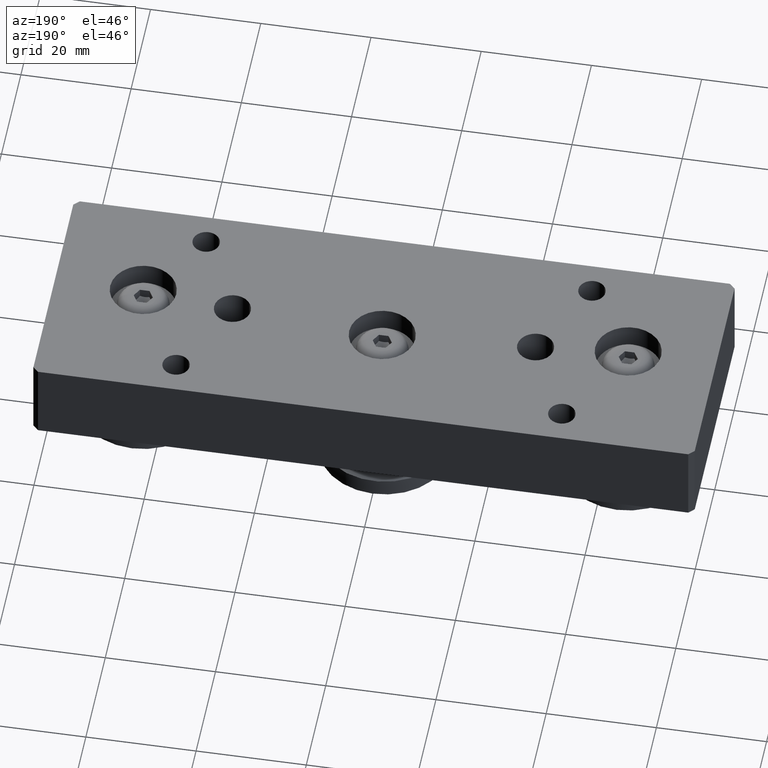
[diagram: clean part render]
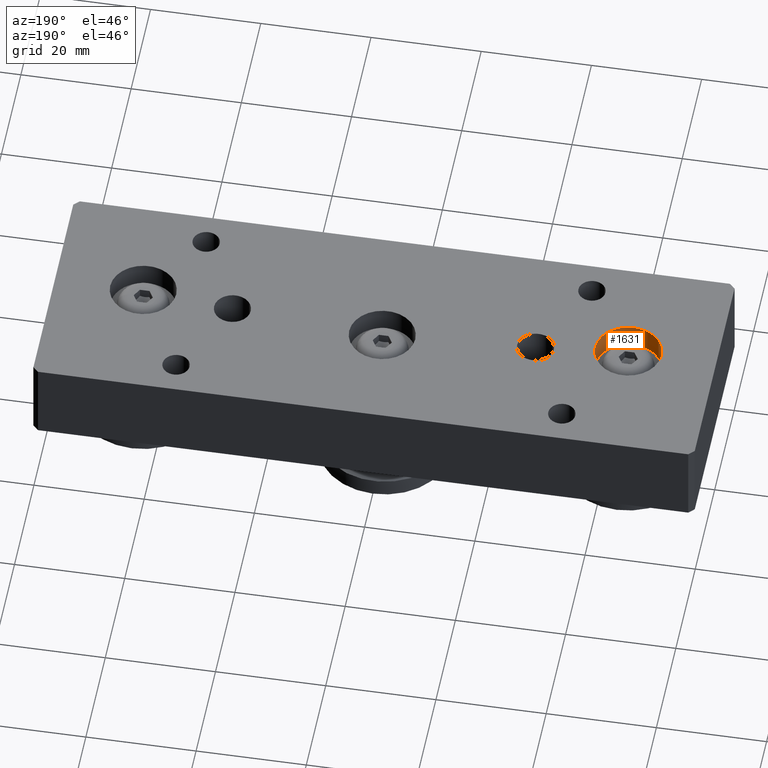
[diagram: same view with one face highlighted and labeled with its STEP entity id]
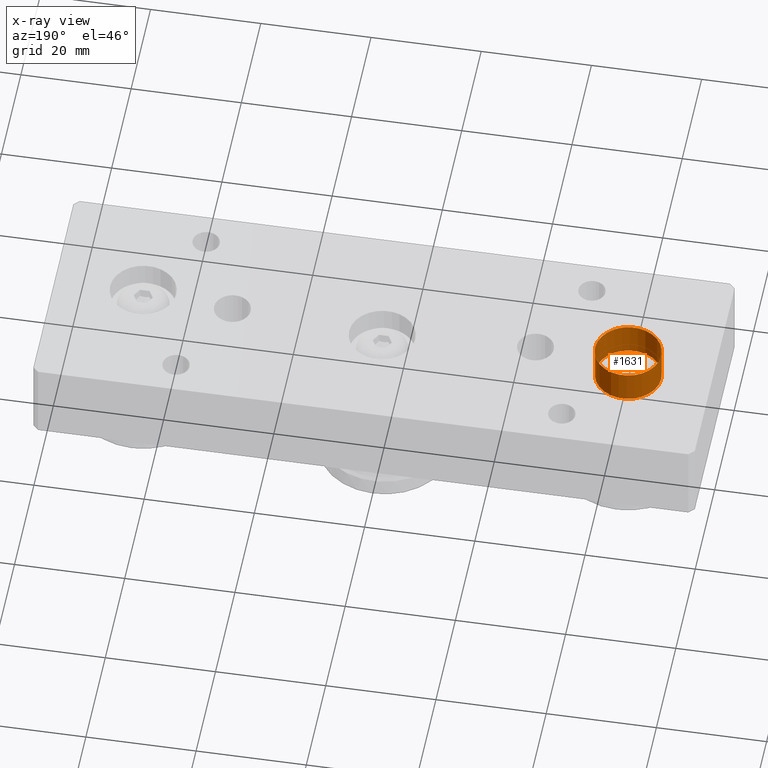
[diagram: x-ray of the same camera — body ghosted, the highlighted face saturated]
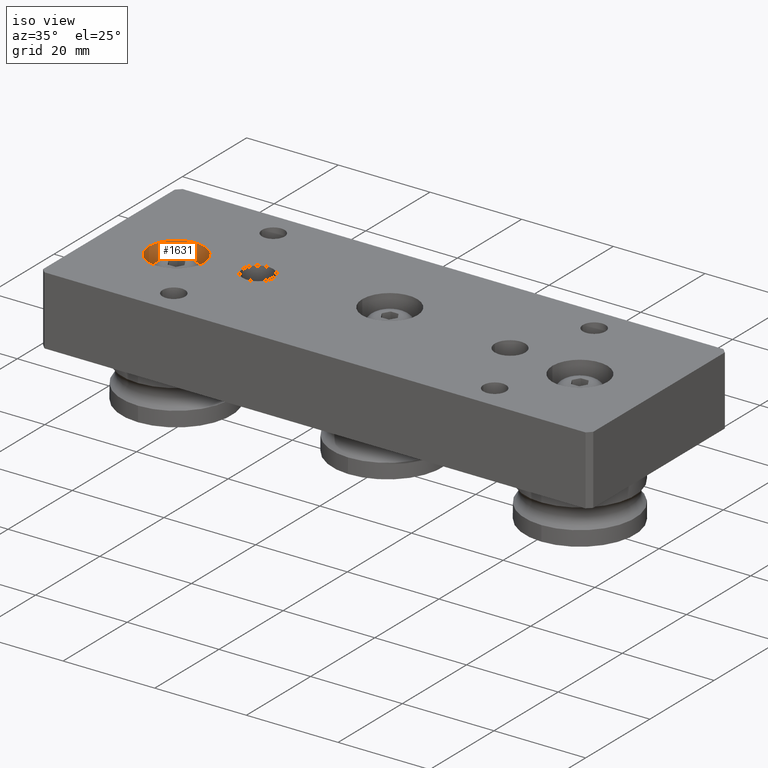
[diagram: same view with one face highlighted and labeled with its STEP entity id]
A machine part, auxiliary view. The second image highlights one B-rep face of the part: STEP entity #1631.
The next image is the same camera in x-ray: the body ghosted, the highlighted face saturated — about 0% of this face is hidden behind the body in this view.
A second angle (iso view) of the same face is appended — the face is thin or edge-on in the first view.
In plain terms, the highlighted cylindrical surface (bore or boss wall) has radius 6 mm, axis along (0, 0, 1).
Its self-contained STEP definition (entity closure, byte-faithful):
#124=CYLINDRICAL_SURFACE('',#1968,6.);
#217=CIRCLE('',#1966,6.);
#219=CIRCLE('',#1969,6.);
#307=FACE_OUTER_BOUND('',#422,.T.);
#422=EDGE_LOOP('',(#1212,#1213,#1214,#1215));
#573=LINE('',#2808,#689);
#689=VECTOR('',#2261,6.);
#808=VERTEX_POINT('',#2801);
#810=VERTEX_POINT('',#2806);
#967=EDGE_CURVE('',#808,#808,#217,.T.);
#969=EDGE_CURVE('',#810,#810,#219,.T.);
#970=EDGE_CURVE('',#810,#808,#573,.T.);
#1212=ORIENTED_EDGE('',*,*,#969,.F.);
#1213=ORIENTED_EDGE('',*,*,#970,.T.);
#1214=ORIENTED_EDGE('',*,*,#967,.F.);
#1215=ORIENTED_EDGE('',*,*,#970,.F.);
#1631=ADVANCED_FACE('',(#307),#124,.F.);
#1966=AXIS2_PLACEMENT_3D('',#2802,#2253,#2254);
#1968=AXIS2_PLACEMENT_3D('',#2805,#2257,#2258);
#1969=AXIS2_PLACEMENT_3D('',#2807,#2259,#2260);
#2253=DIRECTION('center_axis',(0.,0.,1.));
#2254=DIRECTION('ref_axis',(1.,0.,0.));
#2257=DIRECTION('center_axis',(0.,0.,1.));
#2258=DIRECTION('ref_axis',(1.,0.,0.));
#2259=DIRECTION('center_axis',(0.,0.,-1.));
#2260=DIRECTION('ref_axis',(1.,0.,0.));
#2261=DIRECTION('',(0.,0.,-1.));
#2801=CARTESIAN_POINT('',(-50.,-1.8,1.5));
#2802=CARTESIAN_POINT('Origin',(-44.,-1.8,1.5));
#2805=CARTESIAN_POINT('Origin',(-44.,-1.8,4.5));
#2806=CARTESIAN_POINT('',(-50.,-1.8,7.5));
#2807=CARTESIAN_POINT('Origin',(-44.,-1.8,7.5));
#2808=CARTESIAN_POINT('',(-50.,-1.8,4.5));